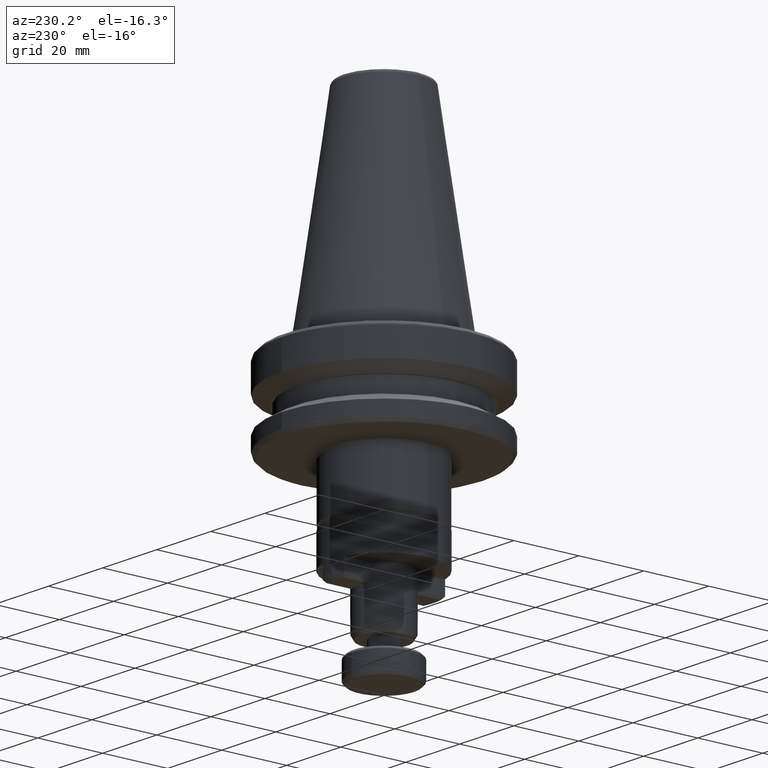
[diagram: clean part render]
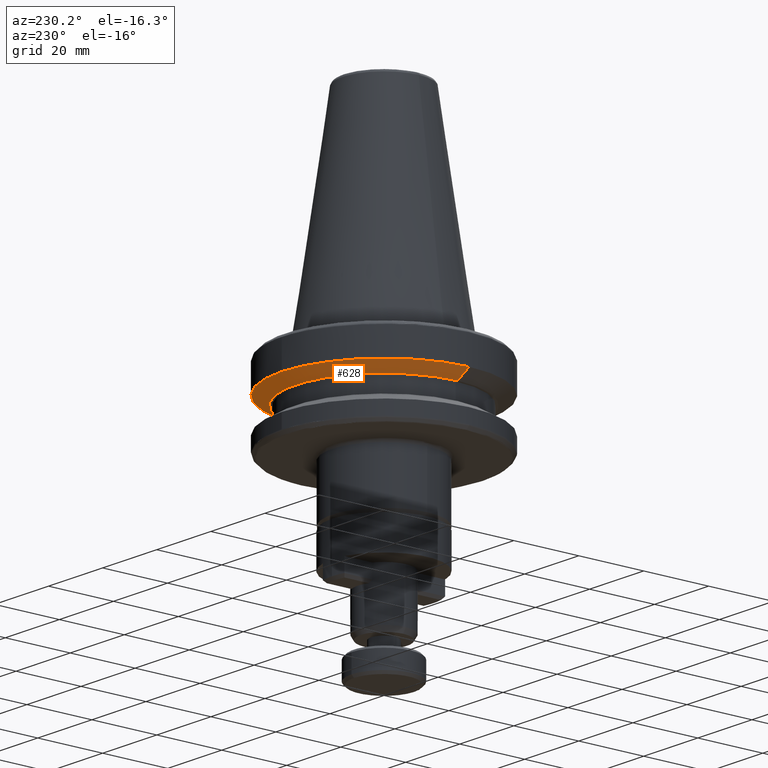
[diagram: same view with one face highlighted and labeled with its STEP entity id]
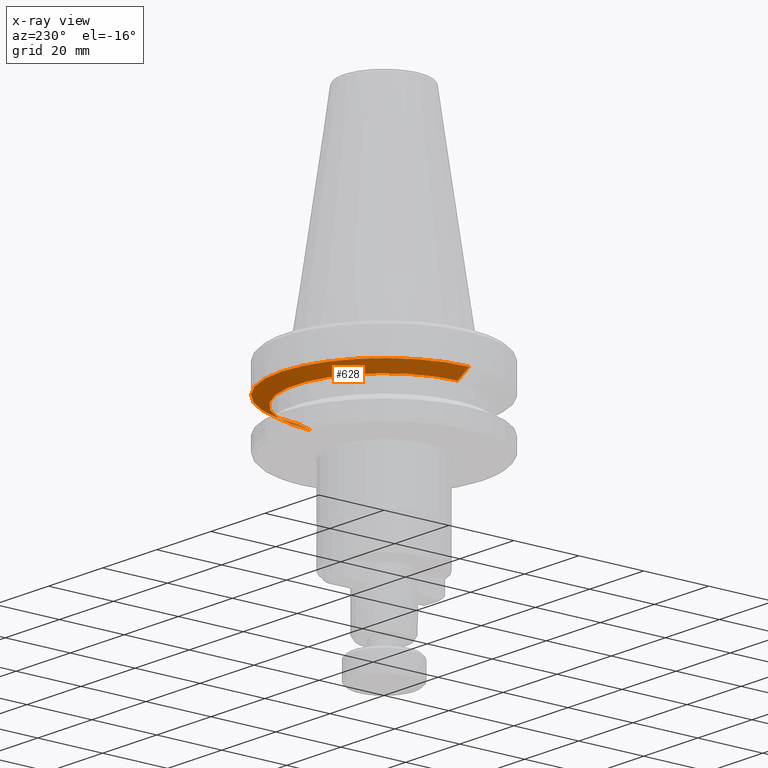
[diagram: x-ray of the same camera — body ghosted, the highlighted face saturated]
A machine part, auxiliary view. The second image highlights one B-rep face of the part: STEP entity #628.
The next image is the same camera in x-ray: the body ghosted, the highlighted face saturated — about 2% of this face is hidden behind the body in this view.
In plain terms, the highlighted conical surface has half-angle 60 deg.
Its self-contained STEP definition (entity closure, byte-faithful):
#139 = EDGE_CURVE ( 'NONE', #2213, #3173, #3445, .T. ) ;
#161 = CARTESIAN_POINT ( 'NONE',  ( 31.50000000000000000, 0.0000000000000000000, -11.62986689387350500 ) ) ;
#326 = CARTESIAN_POINT ( 'NONE',  ( -31.50000000000000000, 3.857637417314162700E-015, -11.62986689387350500 ) ) ;
#346 = EDGE_CURVE ( 'NONE', #601, #3518, #2247, .T. ) ;
#372 = DIRECTION ( 'NONE',  ( -0.8660254037844383700, 1.060575238724906500E-016, 0.5000000000000003300 ) ) ;
#442 = FACE_OUTER_BOUND ( 'NONE', #2746, .T. ) ;
#472 = EDGE_CURVE ( 'NONE', #3084, #3173, #2578, .T. ) ;
#520 = CARTESIAN_POINT ( 'NONE',  ( 3.857637417314162700E-015, 31.50000000000000000, -11.62986689387350500 ) ) ;
#601 = VERTEX_POINT ( 'NONE', #1224 ) ;
#628 = ADVANCED_FACE ( 'NONE', ( #442 ), #1174, .T. ) ;
#708 = VECTOR ( 'NONE', #372, 1000.000000000000100 ) ;
#869 = DIRECTION ( 'NONE',  ( -0.0000000000000000000, -0.0000000000000000000, -1.000000000000000000 ) ) ;
#974 = CARTESIAN_POINT ( 'NONE',  ( 0.0000000000000000000, 0.0000000000000000000, -11.62986689387350500 ) ) ;
#1159 = AXIS2_PLACEMENT_3D ( 'NONE', #2702, #869, #3014 ) ;
#1172 = CARTESIAN_POINT ( 'NONE',  ( 31.50000000000000000, 0.0000000000000000000, -11.62986689387350500 ) ) ;
#1174 = CONICAL_SURFACE ( 'NONE', #2191, 31.50000000000000000, 1.047197551196597400 ) ;
#1224 = CARTESIAN_POINT ( 'NONE',  ( -27.22160395873098800, 3.595661216442922400E-015, -14.10000000000000100 ) ) ;
#1275 = DIRECTION ( 'NONE',  ( -1.000000000000000000, 0.0000000000000000000, 0.0000000000000000000 ) ) ;
#1281 = DIRECTION ( 'NONE',  ( -1.000000000000000000, 0.0000000000000000000, 0.0000000000000000000 ) ) ;
#1625 = CARTESIAN_POINT ( 'NONE',  ( 27.22160395873098800, 0.0000000000000000000, -14.10000000000000100 ) ) ;
#1955 = DIRECTION ( 'NONE',  ( 0.0000000000000000000, 0.0000000000000000000, 1.000000000000000000 ) ) ;
#2136 = CARTESIAN_POINT ( 'NONE',  ( 0.0000000000000000000, 0.0000000000000000000, -11.62986689387350500 ) ) ;
#2191 = AXIS2_PLACEMENT_3D ( 'NONE', #2136, #1955, #3805 ) ;
#2213 = VERTEX_POINT ( 'NONE', #520 ) ;
#2247 = LINE ( 'NONE', #2475, #708 ) ;
#2269 = EDGE_CURVE ( 'NONE', #601, #3084, #3470, .T. ) ;
#2408 = EDGE_CURVE ( 'NONE', #3518, #2213, #3188, .T. ) ;
#2475 = CARTESIAN_POINT ( 'NONE',  ( -31.50000000000000000, 3.857637417314162700E-015, -11.62986689387350500 ) ) ;
#2486 = ORIENTED_EDGE ( 'NONE', *, *, #472, .F. ) ;
#2546 = AXIS2_PLACEMENT_3D ( 'NONE', #3827, #3284, #1275 ) ;
#2578 = LINE ( 'NONE', #1172, #3489 ) ;
#2702 = CARTESIAN_POINT ( 'NONE',  ( 0.0000000000000000000, 0.0000000000000000000, -14.10000000000000100 ) ) ;
#2746 = EDGE_LOOP ( 'NONE', ( #3856, #3719, #3440, #3900, #2486 ) ) ;
#3014 = DIRECTION ( 'NONE',  ( -1.000000000000000000, 0.0000000000000000000, 0.0000000000000000000 ) ) ;
#3017 = DIRECTION ( 'NONE',  ( 0.8660254037844383700, 0.0000000000000000000, 0.5000000000000003300 ) ) ;
#3084 = VERTEX_POINT ( 'NONE', #1625 ) ;
#3125 = DIRECTION ( 'NONE',  ( -0.0000000000000000000, -0.0000000000000000000, -1.000000000000000000 ) ) ;
#3173 = VERTEX_POINT ( 'NONE', #161 ) ;
#3188 = CIRCLE ( 'NONE', #3628, 31.50000000000000000 ) ;
#3284 = DIRECTION ( 'NONE',  ( -0.0000000000000000000, -0.0000000000000000000, -1.000000000000000000 ) ) ;
#3440 = ORIENTED_EDGE ( 'NONE', *, *, #2408, .T. ) ;
#3445 = CIRCLE ( 'NONE', #2546, 31.50000000000000000 ) ;
#3470 = CIRCLE ( 'NONE', #1159, 27.22160395873098800 ) ;
#3489 = VECTOR ( 'NONE', #3017, 1000.000000000000100 ) ;
#3518 = VERTEX_POINT ( 'NONE', #326 ) ;
#3628 = AXIS2_PLACEMENT_3D ( 'NONE', #974, #3125, #1281 ) ;
#3719 = ORIENTED_EDGE ( 'NONE', *, *, #346, .T. ) ;
#3805 = DIRECTION ( 'NONE',  ( 1.000000000000000000, 0.0000000000000000000, 0.0000000000000000000 ) ) ;
#3827 = CARTESIAN_POINT ( 'NONE',  ( 0.0000000000000000000, 0.0000000000000000000, -11.62986689387350500 ) ) ;
#3856 = ORIENTED_EDGE ( 'NONE', *, *, #2269, .F. ) ;
#3900 = ORIENTED_EDGE ( 'NONE', *, *, #139, .T. ) ;